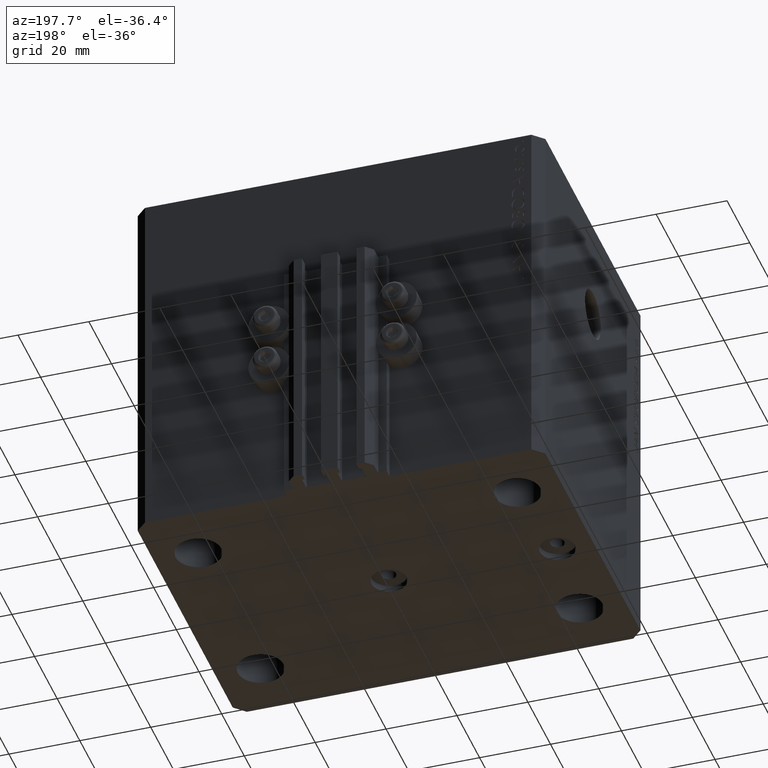
[diagram: clean part render]
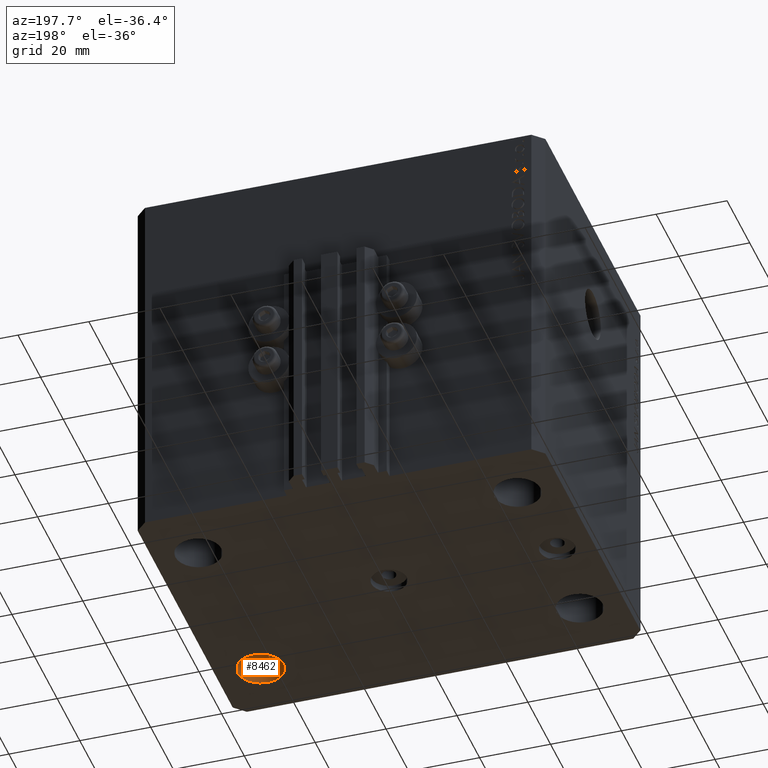
[diagram: same view with one face highlighted and labeled with its STEP entity id]
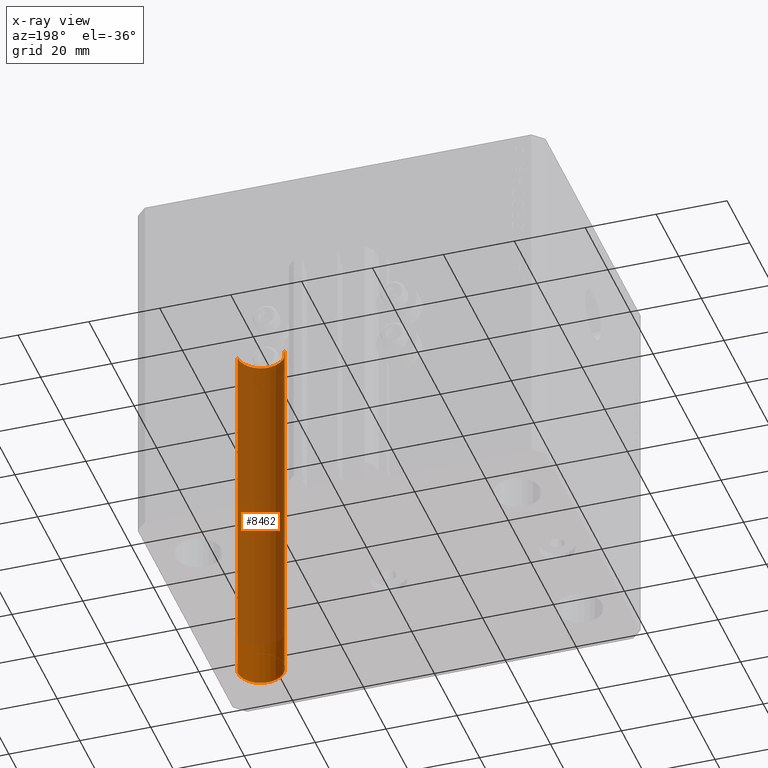
[diagram: x-ray of the same camera — body ghosted, the highlighted face saturated]
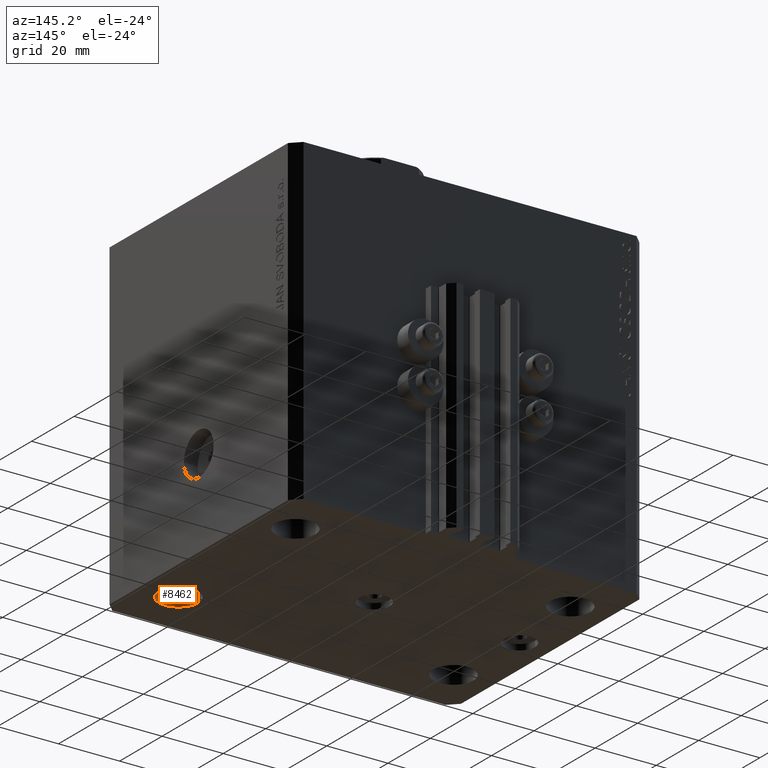
[diagram: same view with one face highlighted and labeled with its STEP entity id]
A machine part, auxiliary view. The second image highlights one B-rep face of the part: STEP entity #8462.
The next image is the same camera in x-ray: the body ghosted, the highlighted face saturated — about 88% of this face is hidden behind the body in this view.
A second angle (auxiliary view) of the same face is appended — the face is thin or edge-on in the first view.
In plain terms, the highlighted cylindrical surface (edge-blend (fillet) strip) has radius 6.5 mm, axis along (0, 0, 1).
Its self-contained STEP definition (entity closure, byte-faithful):
#4112 = EDGE_CURVE ( 'NONE', #22467, #13820, #45505, .T. ) ;
#4471 = EDGE_CURVE ( 'NONE', #22467, #24613, #29125, .T. ) ;
#8462 = ADVANCED_FACE ( 'NONE', ( #36174 ), #43354, .F. ) ;
#8779 = AXIS2_PLACEMENT_3D ( 'NONE', #32113, #43623, #39783 ) ;
#9603 = DIRECTION ( 'NONE',  ( 0.000000000000000000, 0.000000000000000000, 1.000000000000000000 ) ) ;
#10068 = EDGE_CURVE ( 'NONE', #13820, #44365, #27285, .T. ) ;
#10768 = CARTESIAN_POINT ( 'NONE',  ( 44.99999999999998579, -27.50000000000000355, -123.3847763108502278 ) ) ;
#11420 = CIRCLE ( 'NONE', #38197, 6.499999999999999112 ) ;
#11917 = ORIENTED_EDGE ( 'NONE', *, *, #4112, .T. ) ;
#13820 = VERTEX_POINT ( 'NONE', #17018 ) ;
#14205 = CARTESIAN_POINT ( 'NONE',  ( 51.49999999999998579, -27.50000000000000355, -105.0000000000000000 ) ) ;
#17018 = CARTESIAN_POINT ( 'NONE',  ( 38.49999999999998579, -27.50000000000000355, -105.0000000000000000 ) ) ;
#17718 = DIRECTION ( 'NONE',  ( 1.000000000000000000, 0.000000000000000000, 0.000000000000000000 ) ) ;
#19975 = ORIENTED_EDGE ( 'NONE', *, *, #29558, .T. ) ;
#22467 = VERTEX_POINT ( 'NONE', #14205 ) ;
#23469 = VECTOR ( 'NONE', #38542, 1000.000000000000000 ) ;
#24210 = DIRECTION ( 'NONE',  ( 1.000000000000000000, 0.000000000000000000, 0.000000000000000000 ) ) ;
#24613 = VERTEX_POINT ( 'NONE', #34052 ) ;
#25725 = AXIS2_PLACEMENT_3D ( 'NONE', #10768, #39512, #17718 ) ;
#27285 = LINE ( 'NONE', #30876, #23469 ) ;
#29125 = LINE ( 'NONE', #36084, #42418 ) ;
#29558 = EDGE_CURVE ( 'NONE', #44365, #24613, #11420, .T. ) ;
#30876 = CARTESIAN_POINT ( 'NONE',  ( 38.49999999999998579, -27.50000000000000355, -123.3847763108502278 ) ) ;
#31695 = EDGE_LOOP ( 'NONE', ( #11917, #35089, #19975, #36611 ) ) ;
#32113 = CARTESIAN_POINT ( 'NONE',  ( 44.99999999999998579, -27.50000000000000355, -105.0000000000000000 ) ) ;
#34052 = CARTESIAN_POINT ( 'NONE',  ( 51.49999999999998579, -27.50000000000000355, 0.000000000000000000 ) ) ;
#35089 = ORIENTED_EDGE ( 'NONE', *, *, #10068, .T. ) ;
#36084 = CARTESIAN_POINT ( 'NONE',  ( 51.49999999999998579, -27.50000000000000355, -123.3847763108502278 ) ) ;
#36174 = FACE_OUTER_BOUND ( 'NONE', #31695, .T. ) ;
#36611 = ORIENTED_EDGE ( 'NONE', *, *, #4471, .F. ) ;
#38197 = AXIS2_PLACEMENT_3D ( 'NONE', #46012, #9603, #24210 ) ;
#38542 = DIRECTION ( 'NONE',  ( -0.000000000000000000, -0.000000000000000000, 1.000000000000000000 ) ) ;
#39512 = DIRECTION ( 'NONE',  ( -0.000000000000000000, -0.000000000000000000, 1.000000000000000000 ) ) ;
#39783 = DIRECTION ( 'NONE',  ( 1.000000000000000000, 0.000000000000000000, 0.000000000000000000 ) ) ;
#41347 = CARTESIAN_POINT ( 'NONE',  ( 38.49999999999998579, -27.50000000000000355, 0.000000000000000000 ) ) ;
#42418 = VECTOR ( 'NONE', #47083, 1000.000000000000000 ) ;
#43354 = CYLINDRICAL_SURFACE ( 'NONE', #25725, 6.499999999999999112 ) ;
#43623 = DIRECTION ( 'NONE',  ( -0.000000000000000000, -0.000000000000000000, -1.000000000000000000 ) ) ;
#44365 = VERTEX_POINT ( 'NONE', #41347 ) ;
#45505 = CIRCLE ( 'NONE', #8779, 6.499999999999999112 ) ;
#46012 = CARTESIAN_POINT ( 'NONE',  ( 44.99999999999998579, -27.50000000000000355, 0.000000000000000000 ) ) ;
#47083 = DIRECTION ( 'NONE',  ( -0.000000000000000000, -0.000000000000000000, 1.000000000000000000 ) ) ;